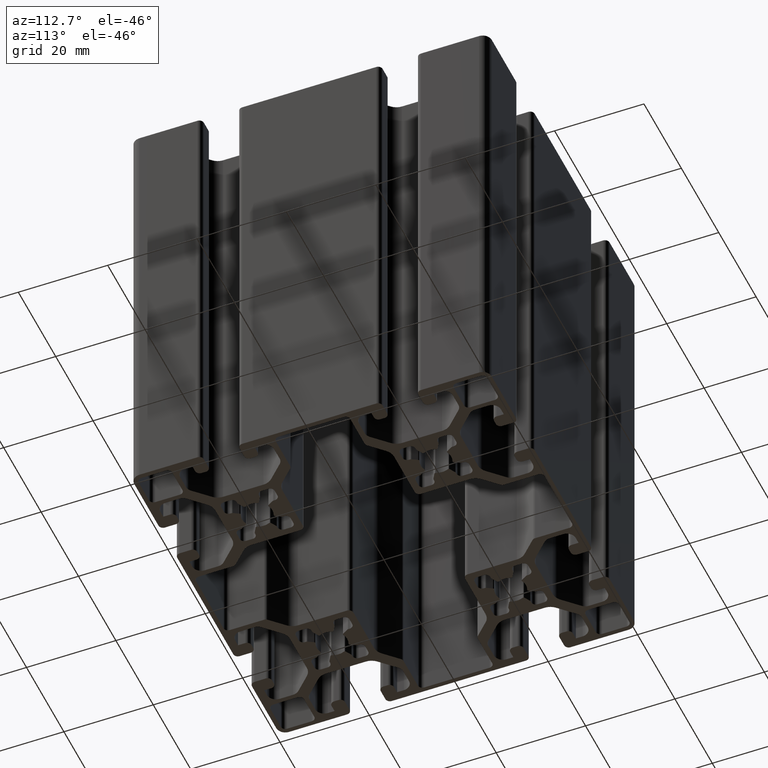
[diagram: clean part render]
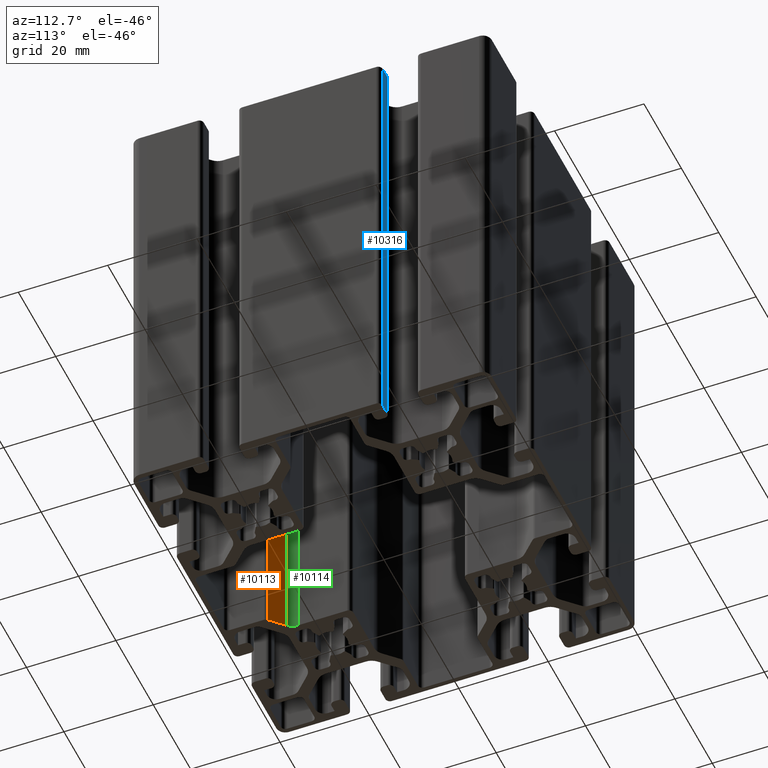
[diagram: same view with three faces highlighted in distinct colors, each labeled with its STEP entity id]
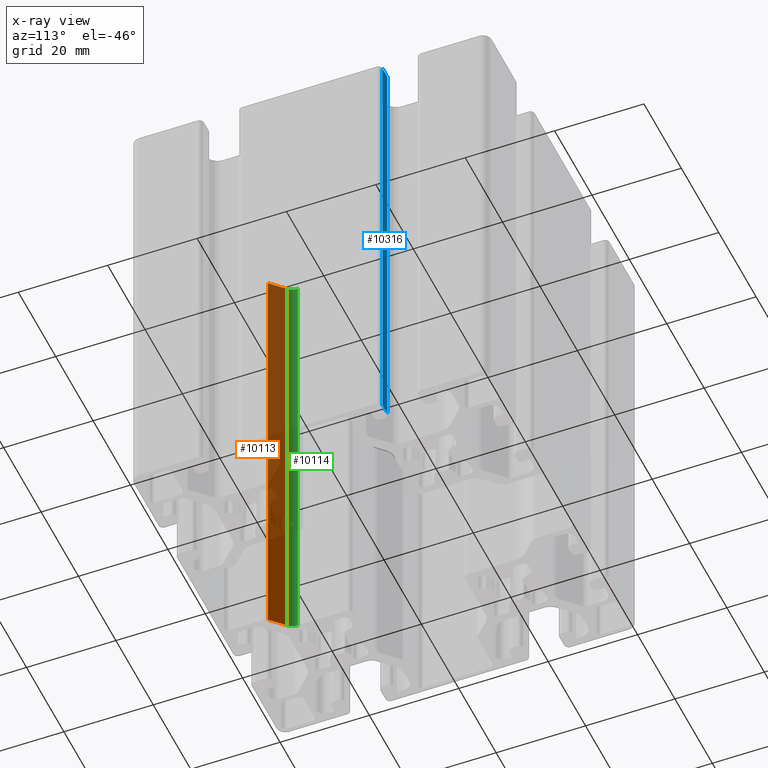
[diagram: x-ray of the same camera — body ghosted, the three highlighted faces saturated]
A machine part, auxiliary view with three faces highlighted in distinct colors.
The next image is the same camera in x-ray (body ghosted, the three faces saturated) — at least one of them is partly hidden behind the body in this view.
Their STEP definitions:

[orange] entity #10113 — the highlighted planar face has unit normal (-0.7071, -0.7071, 0).
#889=FACE_OUTER_BOUND('',#1419,.T.);
#1419=EDGE_LOOP('',(#6807,#6808,#6809,#6810));
#2007=LINE('',#15112,#3047);
#2008=LINE('',#15115,#3048);
#2009=LINE('',#15117,#3049);
#2010=LINE('',#15118,#3050);
#3047=VECTOR('',#11921,100.);
#3048=VECTOR('',#11924,4.25738686835191);
#3049=VECTOR('',#11925,4.25738686835191);
#3050=VECTOR('',#11926,100.);
#4087=VERTEX_POINT('',#15108);
#4088=VERTEX_POINT('',#15110);
#4089=VERTEX_POINT('',#15114);
#4090=VERTEX_POINT('',#15116);
#5183=EDGE_CURVE('',#4088,#4087,#2007,.T.);
#5184=EDGE_CURVE('',#4087,#4089,#2008,.T.);
#5185=EDGE_CURVE('',#4090,#4088,#2009,.T.);
#5186=EDGE_CURVE('',#4090,#4089,#2010,.T.);
#6807=ORIENTED_EDGE('',*,*,#5184,.F.);
#6808=ORIENTED_EDGE('',*,*,#5183,.F.);
#6809=ORIENTED_EDGE('',*,*,#5185,.F.);
#6810=ORIENTED_EDGE('',*,*,#5186,.T.);
#9835=PLANE('',#10685);
#10113=ADVANCED_FACE('',(#889),#9835,.F.);
#10685=AXIS2_PLACEMENT_3D('',#15113,#11922,#11923);
#11921=DIRECTION('',(0.,0.,1.));
#11922=DIRECTION('center_axis',(-0.707106781186549,-0.707106781186546,0.));
#11923=DIRECTION('ref_axis',(0.,0.,1.));
#11924=DIRECTION('',(-0.707106781186546,0.707106781186549,0.));
#11925=DIRECTION('',(0.707106781186546,-0.707106781186549,0.));
#11926=DIRECTION('',(0.,0.,1.));
#15108=CARTESIAN_POINT('',(-8.61089321881346,-29.6213398282202,100.));
#15110=CARTESIAN_POINT('',(-8.61089321881346,-29.6213398282202,0.));
#15112=CARTESIAN_POINT('',(-8.61089321881346,-29.6213398282202,0.));
#15113=CARTESIAN_POINT('Origin',(-8.61089321881346,-29.6213398282202,0.));
#15114=CARTESIAN_POINT('',(-11.6213203435597,-26.610912703474,100.));
#15115=CARTESIAN_POINT('',(-13.8635048711652,-24.3687281758685,100.));
#15116=CARTESIAN_POINT('',(-11.6213203435597,-26.610912703474,0.));
#15117=CARTESIAN_POINT('',(-13.8635048711652,-24.3687281758685,0.));
#15118=CARTESIAN_POINT('',(-11.6213203435597,-26.610912703474,0.));

[blue] entity #10316 — the highlighted planar face has unit normal (0, -1, 0).
#1092=FACE_OUTER_BOUND('',#1622,.T.);
#1622=EDGE_LOOP('',(#7619,#7620,#7621,#7622));
#2427=LINE('',#16350,#3467);
#2428=LINE('',#16354,#3468);
#2429=LINE('',#16356,#3469);
#2430=LINE('',#16357,#3470);
#3467=VECTOR('',#13137,100.);
#3468=VECTOR('',#13142,2.5);
#3469=VECTOR('',#13143,100.);
#3470=VECTOR('',#13144,2.5);
#4507=VERTEX_POINT('',#16347);
#4508=VERTEX_POINT('',#16349);
#4509=VERTEX_POINT('',#16353);
#4510=VERTEX_POINT('',#16355);
#5798=EDGE_CURVE('',#4508,#4507,#2427,.T.);
#5800=EDGE_CURVE('',#4509,#4507,#2428,.T.);
#5801=EDGE_CURVE('',#4510,#4509,#2429,.T.);
#5802=EDGE_CURVE('',#4508,#4510,#2430,.T.);
#7619=ORIENTED_EDGE('',*,*,#5800,.F.);
#7620=ORIENTED_EDGE('',*,*,#5801,.F.);
#7621=ORIENTED_EDGE('',*,*,#5802,.F.);
#7622=ORIENTED_EDGE('',*,*,#5798,.T.);
#9940=PLANE('',#11084);
#10316=ADVANCED_FACE('',(#1092),#9940,.F.);
#11084=AXIS2_PLACEMENT_3D('',#16352,#13140,#13141);
#13137=DIRECTION('',(0.,0.,1.));
#13140=DIRECTION('center_axis',(0.,-1.,0.));
#13141=DIRECTION('ref_axis',(0.,0.,-1.));
#13142=DIRECTION('',(-1.,0.,0.));
#13143=DIRECTION('',(0.,0.,1.));
#13144=DIRECTION('',(1.,0.,0.));
#16347=CARTESIAN_POINT('',(36.5,16.,100.));
#16349=CARTESIAN_POINT('',(36.5,16.,0.));
#16350=CARTESIAN_POINT('',(36.5,16.,0.));
#16352=CARTESIAN_POINT('Origin',(39.,16.,0.));
#16353=CARTESIAN_POINT('',(39.,16.,100.));
#16354=CARTESIAN_POINT('',(19.5,16.,100.));
#16355=CARTESIAN_POINT('',(39.,16.,0.));
#16356=CARTESIAN_POINT('',(39.,16.,0.));
#16357=CARTESIAN_POINT('',(19.5,16.,0.));

[green] entity #10114 — the highlighted cylindrical surface (edge-blend (fillet) strip) has radius 3 mm, axis along (0, 0, 1).
#73=CIRCLE('',#10687,3.);
#74=CIRCLE('',#10688,3.);
#597=CYLINDRICAL_SURFACE('',#10686,3.);
#890=FACE_OUTER_BOUND('',#1420,.T.);
#1420=EDGE_LOOP('',(#6811,#6812,#6813,#6814));
#2010=LINE('',#15118,#3050);
#2011=LINE('',#15124,#3051);
#3050=VECTOR('',#11926,100.);
#3051=VECTOR('',#11933,100.);
#4089=VERTEX_POINT('',#15114);
#4090=VERTEX_POINT('',#15116);
#4091=VERTEX_POINT('',#15120);
#4092=VERTEX_POINT('',#15122);
#5186=EDGE_CURVE('',#4090,#4089,#2010,.T.);
#5187=EDGE_CURVE('',#4089,#4091,#73,.T.);
#5188=EDGE_CURVE('',#4092,#4090,#74,.T.);
#5189=EDGE_CURVE('',#4092,#4091,#2011,.T.);
#6811=ORIENTED_EDGE('',*,*,#5187,.F.);
#6812=ORIENTED_EDGE('',*,*,#5186,.F.);
#6813=ORIENTED_EDGE('',*,*,#5188,.F.);
#6814=ORIENTED_EDGE('',*,*,#5189,.T.);
#10114=ADVANCED_FACE('',(#890),#597,.F.);
#10686=AXIS2_PLACEMENT_3D('',#15119,#11927,#11928);
#10687=AXIS2_PLACEMENT_3D('',#15121,#11929,#11930);
#10688=AXIS2_PLACEMENT_3D('',#15123,#11931,#11932);
#11926=DIRECTION('',(0.,0.,1.));
#11927=DIRECTION('center_axis',(0.,0.,1.));
#11928=DIRECTION('ref_axis',(-1.,1.48029736616687E-15,0.));
#11929=DIRECTION('center_axis',(0.,0.,-1.));
#11930=DIRECTION('ref_axis',(-1.,1.48029736616687E-15,0.));
#11931=DIRECTION('center_axis',(0.,0.,1.));
#11932=DIRECTION('ref_axis',(-1.,1.48029736616687E-15,0.));
#11933=DIRECTION('',(0.,0.,1.));
#15114=CARTESIAN_POINT('',(-11.6213203435597,-26.610912703474,100.));
#15116=CARTESIAN_POINT('',(-11.6213203435597,-26.610912703474,0.));
#15118=CARTESIAN_POINT('',(-11.6213203435597,-26.610912703474,0.));
#15119=CARTESIAN_POINT('Origin',(-9.50000000000001,-24.4895923599144,0.));
#15120=CARTESIAN_POINT('',(-12.5,-24.4895923599144,100.));
#15121=CARTESIAN_POINT('Origin',(-9.50000000000001,-24.4895923599144,100.));
#15122=CARTESIAN_POINT('',(-12.5,-24.4895923599144,0.));
#15123=CARTESIAN_POINT('Origin',(-9.50000000000001,-24.4895923599144,0.));
#15124=CARTESIAN_POINT('',(-12.5,-24.4895923599144,0.));